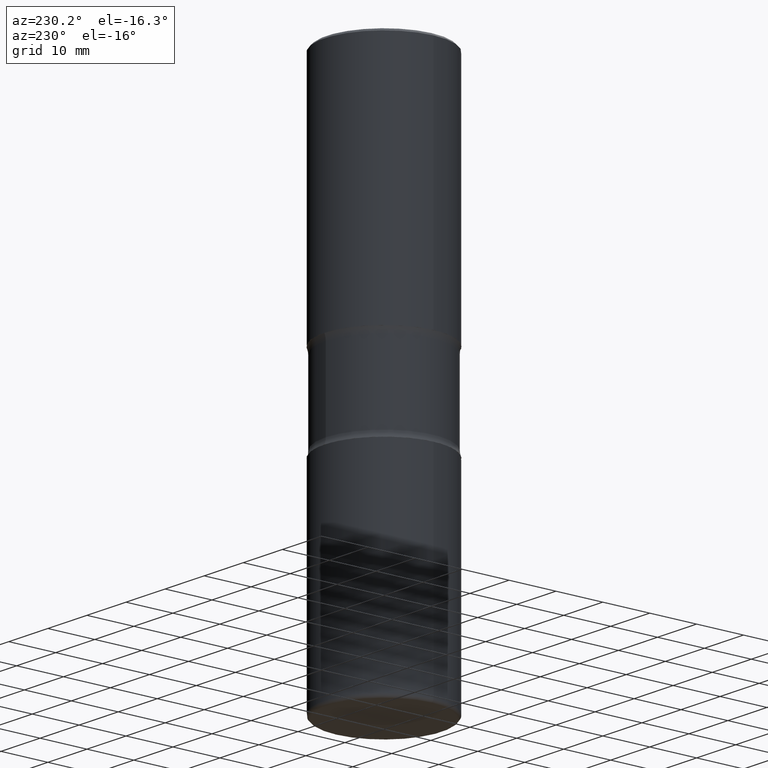
[diagram: clean part render]
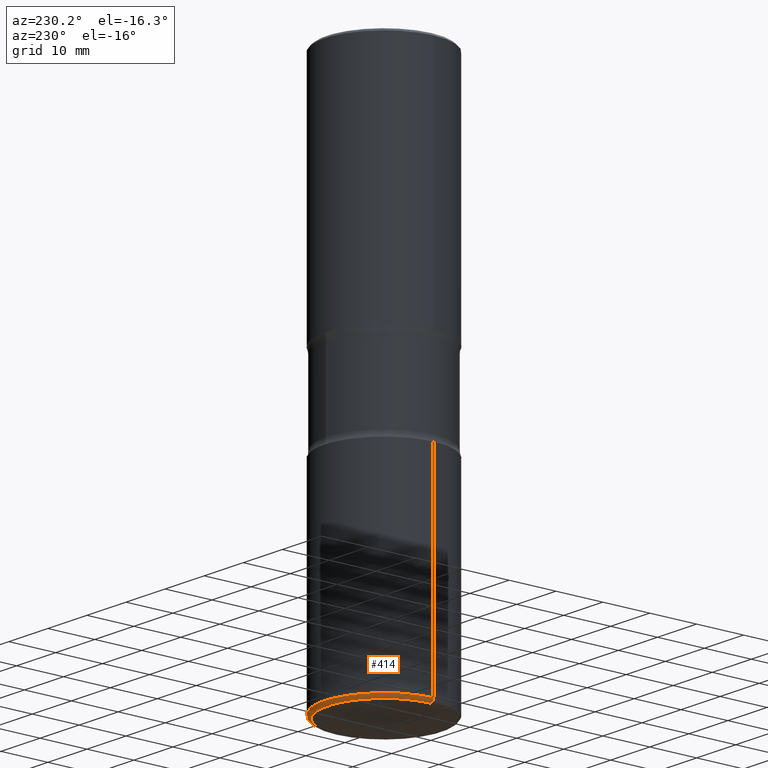
[diagram: same view with one face highlighted and labeled with its STEP entity id]
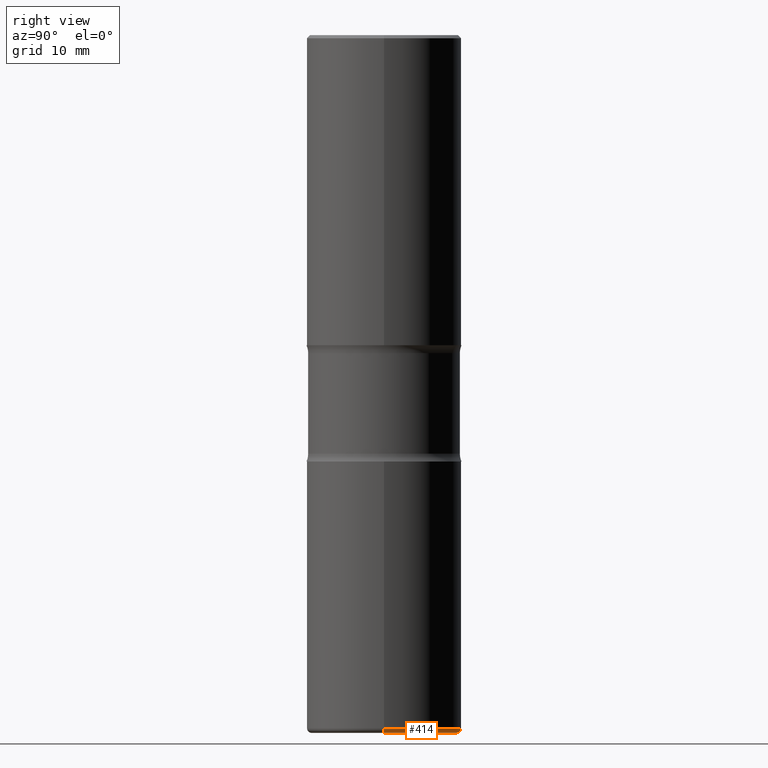
[diagram: same view with one face highlighted and labeled with its STEP entity id]
A machine part, auxiliary view. The second image highlights one B-rep face of the part: STEP entity #414.
A second angle (right view) of the same face is appended — the face is thin or edge-on in the first view.
In plain terms, the highlighted toroidal blend (fillet) surface has major radius 11.938 mm and minor (blend) radius 0.762 mm.
Its self-contained STEP definition (entity closure, byte-faithful):
#1 = EDGE_LOOP ( 'NONE', ( #41, #558, #518, #480 ) ) ;
#2 = CARTESIAN_POINT ( 'NONE',  ( 1.100460962783311469E-28, -1.571166602479415690E-14, -4.500000000000000000 ) ) ;
#7 = CARTESIAN_POINT ( 'NONE',  ( 1.093124556364756229E-28, -1.560692158462886353E-14, -4.470000000000000639 ) ) ;
#18 = VERTEX_POINT ( 'NONE', #442 ) ;
#21 = CARTESIAN_POINT ( 'NONE',  ( 1.093124556364756229E-28, -1.560692158462886353E-14, -4.470000000000000639 ) ) ;
#41 = ORIENTED_EDGE ( 'NONE', *, *, #286, .T. ) ;
#84 = VERTEX_POINT ( 'NONE', #144 ) ;
#110 = DIRECTION ( 'NONE',  ( -2.445468806185136597E-29, 3.491481338843145583E-15, 1.000000000000000000 ) ) ;
#144 = CARTESIAN_POINT ( 'NONE',  ( 0.5000000000000002220, -1.909840292347200004E-14, -4.470000000000000639 ) ) ;
#160 = DIRECTION ( 'NONE',  ( 1.000000000000000000, -6.982962677686268288E-15, 0.000000000000000000 ) ) ;
#165 = CIRCLE ( 'NONE', #240, 0.4700000000000004730 ) ;
#182 = AXIS2_PLACEMENT_3D ( 'NONE', #21, #189, #279 ) ;
#185 = DIRECTION ( 'NONE',  ( -6.982962677686266711E-15, -1.000000000000000000, 3.491481338843145583E-15 ) ) ;
#189 = DIRECTION ( 'NONE',  ( -2.445468806185136597E-29, 3.491481338843145583E-15, 1.000000000000000000 ) ) ;
#191 = AXIS2_PLACEMENT_3D ( 'NONE', #7, #110, #399 ) ;
#226 = DIRECTION ( 'NONE',  ( 1.000000000000000000, -6.982962677686213068E-15, 0.000000000000000000 ) ) ;
#240 = AXIS2_PLACEMENT_3D ( 'NONE', #2, #307, #160 ) ;
#243 = VERTEX_POINT ( 'NONE', #461 ) ;
#258 = CARTESIAN_POINT ( 'NONE',  ( -0.4700000000000004730, -1.221316153627502204E-14, -4.500000000000000000 ) ) ;
#279 = DIRECTION ( 'NONE',  ( 1.000000000000000000, -6.982962677686268288E-15, 0.000000000000000000 ) ) ;
#284 = CIRCLE ( 'NONE', #355, 0.02999999999999967970 ) ;
#286 = EDGE_CURVE ( 'NONE', #243, #299, #165, .T. ) ;
#299 = VERTEX_POINT ( 'NONE', #258 ) ;
#307 = DIRECTION ( 'NONE',  ( -2.445468806185136597E-29, 3.491481338843145583E-15, 1.000000000000000000 ) ) ;
#317 = AXIS2_PLACEMENT_3D ( 'NONE', #455, #185, #226 ) ;
#355 = AXIS2_PLACEMENT_3D ( 'NONE', #441, #526, #380 ) ;
#370 = EDGE_CURVE ( 'NONE', #299, #18, #284, .T. ) ;
#377 = TOROIDAL_SURFACE ( 'NONE', #191, 0.4700000000000004730, 0.02999999999999971440 ) ;
#380 = DIRECTION ( 'NONE',  ( -1.000000000000000000, 7.105427357601001859E-15, 0.000000000000000000 ) ) ;
#389 = FACE_OUTER_BOUND ( 'NONE', #1, .T. ) ;
#399 = DIRECTION ( 'NONE',  ( 1.000000000000000000, -6.982962677686265133E-15, 4.883557194083112340E-29 ) ) ;
#414 = ADVANCED_FACE ( 'NONE', ( #389 ), #377, .T. ) ;
#441 = CARTESIAN_POINT ( 'NONE',  ( -0.4700000000000004730, -1.226737072655638969E-14, -4.470000000000000639 ) ) ;
#442 = CARTESIAN_POINT ( 'NONE',  ( -0.5000000000000002220, -1.205420790582835944E-14, -4.470000000000000639 ) ) ;
#455 = CARTESIAN_POINT ( 'NONE',  ( 0.4700000000000004730, -1.888891404314141330E-14, -4.470000000000000639 ) ) ;
#461 = CARTESIAN_POINT ( 'NONE',  ( 0.4700000000000004730, -1.899365848330670351E-14, -4.500000000000000000 ) ) ;
#469 = EDGE_CURVE ( 'NONE', #243, #84, #502, .T. ) ;
#480 = ORIENTED_EDGE ( 'NONE', *, *, #469, .F. ) ;
#502 = CIRCLE ( 'NONE', #317, 0.02999999999999967970 ) ;
#518 = ORIENTED_EDGE ( 'NONE', *, *, #546, .F. ) ;
#526 = DIRECTION ( 'NONE',  ( 7.105427357601001859E-15, 1.000000000000000000, -3.491481338843145583E-15 ) ) ;
#538 = CIRCLE ( 'NONE', #182, 0.5000000000000004441 ) ;
#546 = EDGE_CURVE ( 'NONE', #84, #18, #538, .T. ) ;
#558 = ORIENTED_EDGE ( 'NONE', *, *, #370, .T. ) ;